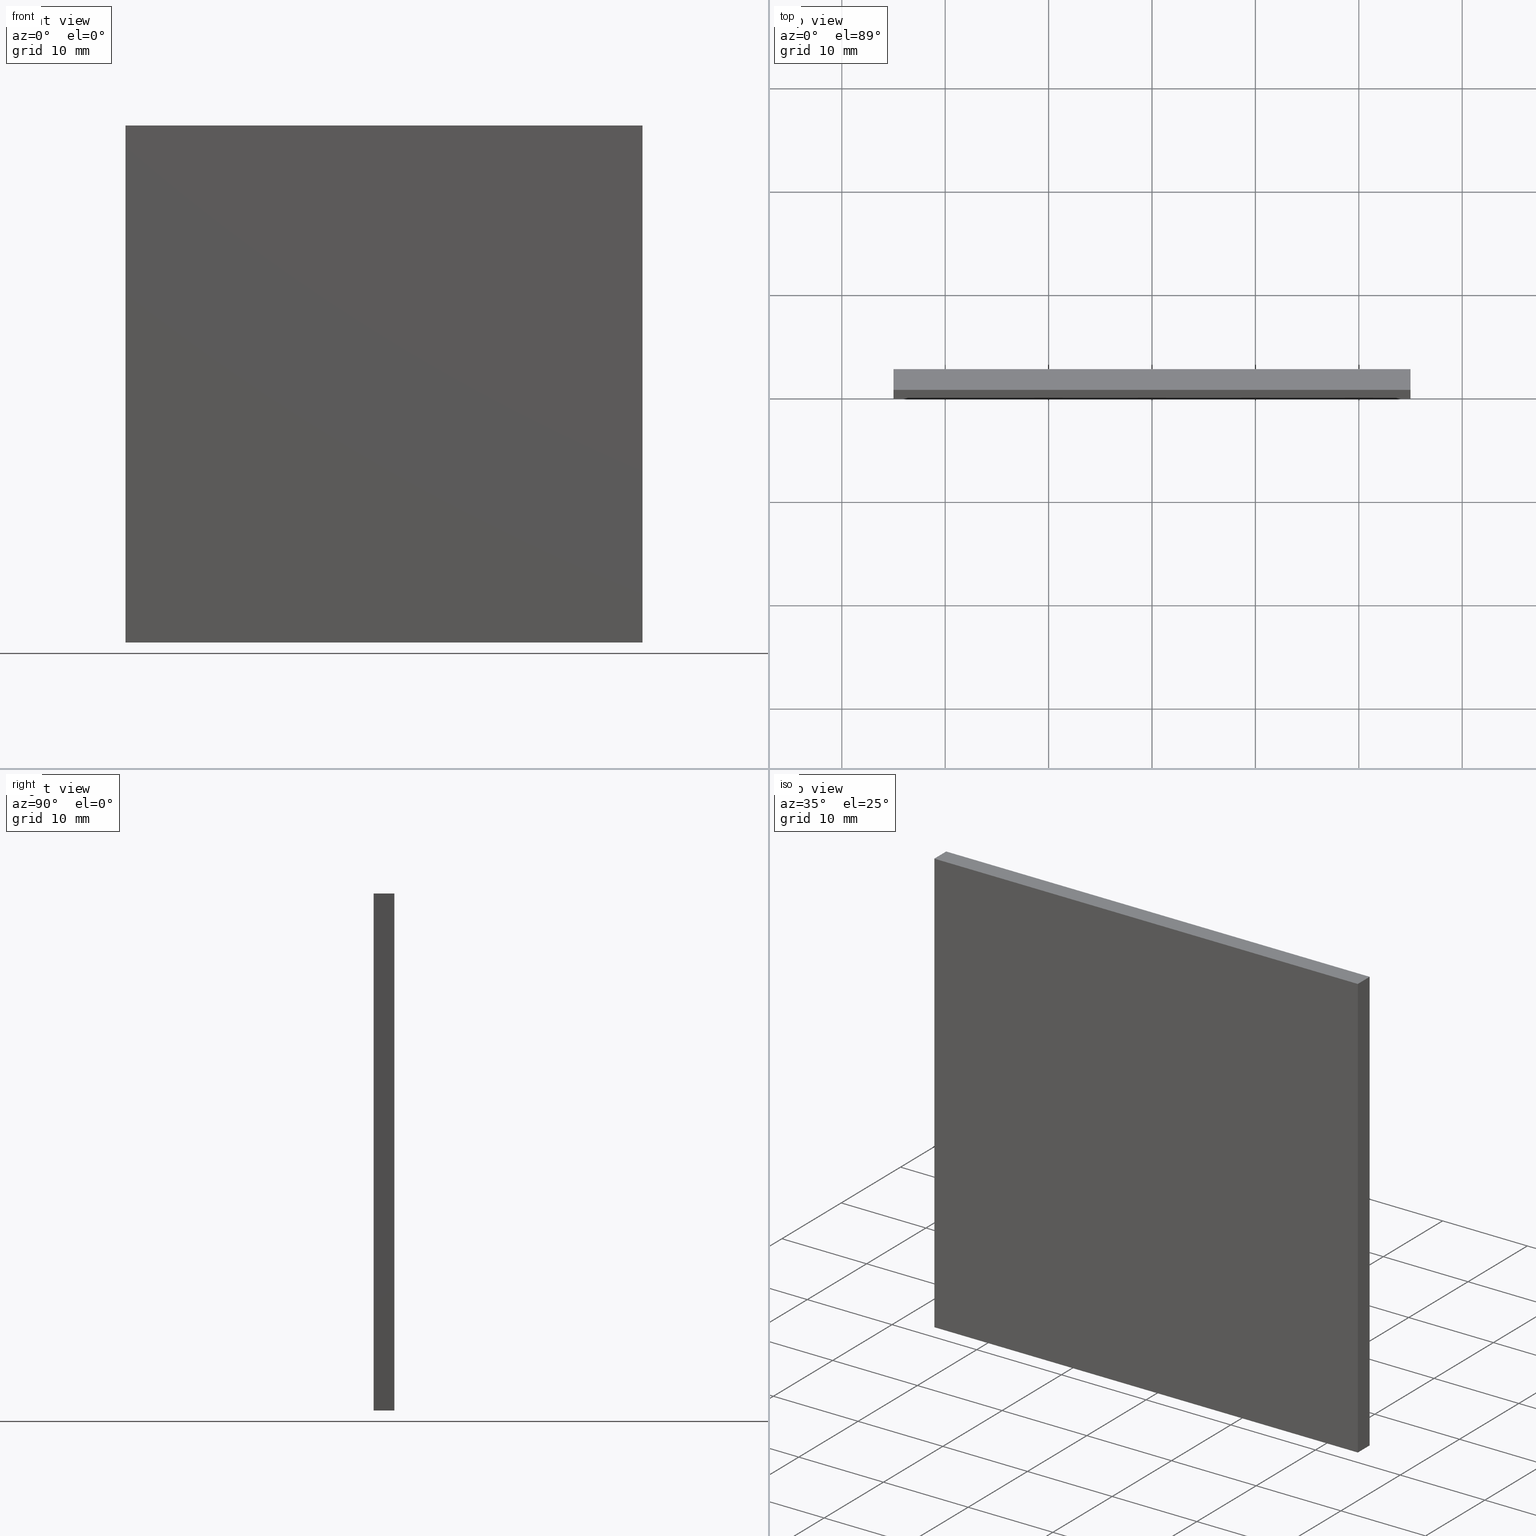
[diagram: canonical four-view strip — front | top / right | iso, engineering-drawing reading convention]
A machine part, canonical four-view strip (front | top / right | iso — engineering-drawing reading convention). The complete STEP part file that produces these views, byte-faithful:
ISO-10303-21;
HEADER;
FILE_DESCRIPTION (( 'STEP AP214' ),
    '1' );
FILE_NAME ('248555.STEP',
    '2019-08-02T06:40:20',
    ( 'user' ),
    ( '΢���й�' ),
    'SwSTEP 2.0',
    'SolidWorks 2016',
    '' );
FILE_SCHEMA (( 'AUTOMOTIVE_DESIGN' ));
ENDSEC;

DATA;
#1 = SURFACE_STYLE_FILL_AREA ( #112 ) ;
#2 = EDGE_CURVE ( 'NONE', #154, #149, #189, .T. ) ;
#3 = EDGE_LOOP ( 'NONE', ( #168, #125, #113, #83 ) ) ;
#4 = ORIENTED_EDGE ( 'NONE', *, *, #2, .T. ) ;
#5 = SURFACE_SIDE_STYLE ('',( #1 ) ) ;
#6 = ADVANCED_FACE ( 'NONE', ( #31 ), #117, .F. ) ;
#7 = CARTESIAN_POINT ( 'NONE',  ( -25.00000000000000000, 2.000000000000000000, 25.00000000000000000 ) ) ;
#8 = DIRECTION ( 'NONE',  ( -1.000000000000000000, 0.0000000000000000000, -0.0000000000000000000 ) ) ;
#9 = ADVANCED_FACE ( 'NONE', ( #105 ), #177, .T. ) ;
#10 = CARTESIAN_POINT ( 'NONE',  ( -25.00000000000000000, 2.000000000000000000, 25.00000000000000000 ) ) ;
#11 = EDGE_CURVE ( 'NONE', #86, #121, #139, .T. ) ;
#12 = DIRECTION ( 'NONE',  ( -1.000000000000000000, 0.0000000000000000000, 0.0000000000000000000 ) ) ;
#13 = CLOSED_SHELL ( 'NONE', ( #144, #195, #89, #58, #6, #9 ) ) ;
#14 = ORIENTED_EDGE ( 'NONE', *, *, #55, .F. ) ;
#15 =( NAMED_UNIT ( * ) SI_UNIT ( $, .STERADIAN. ) SOLID_ANGLE_UNIT ( ) );
#16 = PRODUCT_DEFINITION_CONTEXT ( 'detailed design', #148, 'design' ) ;
#17 = EDGE_CURVE ( 'NONE', #194, #73, #182, .T. ) ;
#18 = ORIENTED_EDGE ( 'NONE', *, *, #97, .T. ) ;
#19 = FACE_OUTER_BOUND ( 'NONE', #124, .T. ) ;
#20 = UNCERTAINTY_MEASURE_WITH_UNIT (LENGTH_MEASURE( 1.000000000000000100E-005 ), #33, 'distance_accuracy_value', 'NONE');
#21 = VECTOR ( 'NONE', #34, 1000.000000000000000 ) ;
#22 = FACE_OUTER_BOUND ( 'NONE', #53, .T. ) ;
#23 = MECHANICAL_DESIGN_GEOMETRIC_PRESENTATION_REPRESENTATION (  '', ( #35 ), #162 ) ;
#24 = ORIENTED_EDGE ( 'NONE', *, *, #17, .F. ) ;
#25 = VECTOR ( 'NONE', #90, 1000.000000000000000 ) ;
#26 = DIRECTION ( 'NONE',  ( 0.0000000000000000000, 0.0000000000000000000, -1.000000000000000000 ) ) ;
#27 = DIRECTION ( 'NONE',  ( 0.0000000000000000000, -0.0000000000000000000, -1.000000000000000000 ) ) ;
#28 = PRESENTATION_LAYER_ASSIGNMENT (  '', '', ( #104 ) ) ;
#29 = CARTESIAN_POINT ( 'NONE',  ( 25.00000000000000000, 0.0000000000000000000, -25.00000000000000000 ) ) ;
#30 = AXIS2_PLACEMENT_3D ( 'NONE', #91, #44, #76 ) ;
#31 = FACE_OUTER_BOUND ( 'NONE', #157, .T. ) ;
#32 = FILL_AREA_STYLE ('',( #107 ) ) ;
#33 =( LENGTH_UNIT ( ) NAMED_UNIT ( * ) SI_UNIT ( .MILLI., .METRE. ) );
#34 = DIRECTION ( 'NONE',  ( 0.0000000000000000000, 0.0000000000000000000, -1.000000000000000000 ) ) ;
#35 = STYLED_ITEM ( 'NONE', ( #85 ), #122 ) ;
#36 = LINE ( 'NONE', #102, #111 ) ;
#37 = VECTOR ( 'NONE', #184, 1000.000000000000000 ) ;
#38 = ORIENTED_EDGE ( 'NONE', *, *, #97, .F. ) ;
#39 = LINE ( 'NONE', #143, #152 ) ;
#40 = MECHANICAL_DESIGN_GEOMETRIC_PRESENTATION_REPRESENTATION (  '', ( #104 ), #51 ) ;
#41 = EDGE_LOOP ( 'NONE', ( #110, #95, #24, #18 ) ) ;
#42 = CARTESIAN_POINT ( 'NONE',  ( 25.00000000000000000, 2.000000000000000000, 25.00000000000000000 ) ) ;
#43 = CARTESIAN_POINT ( 'NONE',  ( -25.00000000000000000, 2.000000000000000000, 25.00000000000000000 ) ) ;
#44 = DIRECTION ( 'NONE',  ( 0.0000000000000000000, -1.000000000000000000, 0.0000000000000000000 ) ) ;
#45 = CARTESIAN_POINT ( 'NONE',  ( 25.00000000000000000, 2.000000000000000000, -25.00000000000000000 ) ) ;
#46 = DIRECTION ( 'NONE',  ( 0.0000000000000000000, 0.0000000000000000000, 1.000000000000000000 ) ) ;
#47 = ORIENTED_EDGE ( 'NONE', *, *, #167, .T. ) ;
#48 =( NAMED_UNIT ( * ) PLANE_ANGLE_UNIT ( ) SI_UNIT ( $, .RADIAN. ) );
#49 = CARTESIAN_POINT ( 'NONE',  ( 0.0000000000000000000, 0.0000000000000000000, 0.0000000000000000000 ) ) ;
#50 = CARTESIAN_POINT ( 'NONE',  ( 25.00000000000000000, 2.000000000000000000, 25.00000000000000000 ) ) ;
#51 =( GEOMETRIC_REPRESENTATION_CONTEXT ( 3 ) GLOBAL_UNCERTAINTY_ASSIGNED_CONTEXT ( ( #146 ) ) GLOBAL_UNIT_ASSIGNED_CONTEXT ( ( #132, #48, #163 ) ) REPRESENTATION_CONTEXT ( 'NONE', 'WORKASPACE' ) );
#52 = EDGE_LOOP ( 'NONE', ( #169, #79, #150, #119 ) ) ;
#53 = EDGE_LOOP ( 'NONE', ( #193, #38, #14, #4 ) ) ;
#54 = AXIS2_PLACEMENT_3D ( 'NONE', #133, #67, #164 ) ;
#55 = EDGE_CURVE ( 'NONE', #154, #194, #101, .T. ) ;
#56 = VERTEX_POINT ( 'NONE', #176 ) ;
#57 = CARTESIAN_POINT ( 'NONE',  ( -25.00000000000000000, 2.000000000000000000, -25.00000000000000000 ) ) ;
#58 = ADVANCED_FACE ( 'NONE', ( #19 ), #145, .F. ) ;
#59 = CARTESIAN_POINT ( 'NONE',  ( -25.00000000000000000, 2.000000000000000000, 25.00000000000000000 ) ) ;
#60 = DIRECTION ( 'NONE',  ( -1.000000000000000000, -0.0000000000000000000, -0.0000000000000000000 ) ) ;
#61 = UNCERTAINTY_MEASURE_WITH_UNIT (LENGTH_MEASURE( 1.000000000000000100E-005 ), #92, 'distance_accuracy_value', 'NONE');
#62 = EDGE_CURVE ( 'NONE', #73, #74, #199, .T. ) ;
#63 = CARTESIAN_POINT ( 'NONE',  ( -25.00000000000000000, 2.000000000000000000, 25.00000000000000000 ) ) ;
#64 = ORIENTED_EDGE ( 'NONE', *, *, #55, .T. ) ;
#65 = VECTOR ( 'NONE', #116, 1000.000000000000000 ) ;
#66 = SURFACE_STYLE_USAGE ( .BOTH. , #151 ) ;
#67 = DIRECTION ( 'NONE',  ( 0.0000000000000000000, 0.0000000000000000000, 1.000000000000000000 ) ) ;
#68 = LINE ( 'NONE', #165, #21 ) ;
#69 = DIRECTION ( 'NONE',  ( -0.0000000000000000000, -1.000000000000000000, -0.0000000000000000000 ) ) ;
#70 = PRESENTATION_STYLE_ASSIGNMENT (( #66 ) ) ;
#71 = CARTESIAN_POINT ( 'NONE',  ( 25.00000000000000000, 2.000000000000000000, -25.00000000000000000 ) ) ;
#72 = EDGE_CURVE ( 'NONE', #56, #149, #36, .T. ) ;
#73 = VERTEX_POINT ( 'NONE', #59 ) ;
#74 = VERTEX_POINT ( 'NONE', #42 ) ;
#75 = DIRECTION ( 'NONE',  ( 1.000000000000000000, 0.0000000000000000000, 0.0000000000000000000 ) ) ;
#76 = DIRECTION ( 'NONE',  ( 0.0000000000000000000, -0.0000000000000000000, -1.000000000000000000 ) ) ;
#77 = FACE_OUTER_BOUND ( 'NONE', #41, .T. ) ;
#78 = PLANE ( 'NONE',  #172 ) ;
#79 = ORIENTED_EDGE ( 'NONE', *, *, #167, .F. ) ;
#80 = ORIENTED_EDGE ( 'NONE', *, *, #62, .T. ) ;
#81 = COLOUR_RGB ( '',1.000000000000000000, 1.000000000000000000, 1.000000000000000000 ) ;
#82 = AXIS2_PLACEMENT_3D ( 'NONE', #49, #46, #181 ) ;
#83 = ORIENTED_EDGE ( 'NONE', *, *, #159, .T. ) ;
#84 = EDGE_CURVE ( 'NONE', #149, #86, #39, .T. ) ;
#85 = PRESENTATION_STYLE_ASSIGNMENT (( #100 ) ) ;
#86 = VERTEX_POINT ( 'NONE', #88 ) ;
#87 = DIRECTION ( 'NONE',  ( 1.000000000000000000, -0.0000000000000000000, 0.0000000000000000000 ) ) ;
#88 = CARTESIAN_POINT ( 'NONE',  ( -25.00000000000000000, 0.0000000000000000000, -25.00000000000000000 ) ) ;
#89 = ADVANCED_FACE ( 'NONE', ( #77 ), #114, .F. ) ;
#90 = DIRECTION ( 'NONE',  ( -0.0000000000000000000, -0.0000000000000000000, 1.000000000000000000 ) ) ;
#91 = CARTESIAN_POINT ( 'NONE',  ( 0.0000000000000000000, 2.000000000000000000, 0.0000000000000000000 ) ) ;
#92 =( LENGTH_UNIT ( ) NAMED_UNIT ( * ) SI_UNIT ( .MILLI., .METRE. ) );
#93 = PRODUCT_DEFINITION ( 'δ֪', '', #99, #16 ) ;
#94 = ORIENTED_EDGE ( 'NONE', *, *, #62, .F. ) ;
#95 = ORIENTED_EDGE ( 'NONE', *, *, #147, .F. ) ;
#96 = PRODUCT_CONTEXT ( 'NONE', #183, 'mechanical' ) ;
#97 = EDGE_CURVE ( 'NONE', #194, #86, #118, .T. ) ;
#98 = VECTOR ( 'NONE', #69, 1000.000000000000000 ) ;
#99 = PRODUCT_DEFINITION_FORMATION_WITH_SPECIFIED_SOURCE ( '�κ�', '', #123, .NOT_KNOWN. ) ;
#100 = SURFACE_STYLE_USAGE ( .BOTH. , #5 ) ;
#101 = LINE ( 'NONE', #160, #175 ) ;
#102 = CARTESIAN_POINT ( 'NONE',  ( 25.00000000000000000, 0.0000000000000000000, 25.00000000000000000 ) ) ;
#103 = PRODUCT_DEFINITION_SHAPE ( 'NONE', 'NONE',  #93 ) ;
#104 = STYLED_ITEM ( 'NONE', ( #70 ), #185 ) ;
#105 = FACE_OUTER_BOUND ( 'NONE', #52, .T. ) ;
#106 =( NAMED_UNIT ( * ) PLANE_ANGLE_UNIT ( ) SI_UNIT ( $, .RADIAN. ) );
#107 = FILL_AREA_STYLE_COLOUR ( '', #137 ) ;
#108 = PRODUCT_RELATED_PRODUCT_CATEGORY ( 'part', '', ( #123 ) ) ;
#109 = LINE ( 'NONE', #202, #37 ) ;
#110 = ORIENTED_EDGE ( 'NONE', *, *, #11, .T. ) ;
#111 = VECTOR ( 'NONE', #26, 1000.000000000000000 ) ;
#112 = FILL_AREA_STYLE ('',( #196 ) ) ;
#113 = ORIENTED_EDGE ( 'NONE', *, *, #155, .F. ) ;
#114 = PLANE ( 'NONE',  #166 ) ;
#115 = DIRECTION ( 'NONE',  ( 0.0000000000000000000, 0.0000000000000000000, -1.000000000000000000 ) ) ;
#116 = DIRECTION ( 'NONE',  ( -0.0000000000000000000, -0.0000000000000000000, 1.000000000000000000 ) ) ;
#117 = PLANE ( 'NONE',  #30 ) ;
#118 = LINE ( 'NONE', #57, #156 ) ;
#119 = ORIENTED_EDGE ( 'NONE', *, *, #84, .F. ) ;
#120 = DIRECTION ( 'NONE',  ( -0.0000000000000000000, -1.000000000000000000, -0.0000000000000000000 ) ) ;
#121 = VERTEX_POINT ( 'NONE', #126 ) ;
#122 = MANIFOLD_SOLID_BREP ( '͹̨-����1', #13 ) ;
#123 = PRODUCT ( '248555', '248555', '', ( #96 ) ) ;
#124 = EDGE_LOOP ( 'NONE', ( #47, #153, #94, #200 ) ) ;
#125 = ORIENTED_EDGE ( 'NONE', *, *, #2, .F. ) ;
#126 = CARTESIAN_POINT ( 'NONE',  ( -25.00000000000000000, 0.0000000000000000000, 25.00000000000000000 ) ) ;
#127 = DIRECTION ( 'NONE',  ( -1.000000000000000000, -0.0000000000000000000, -0.0000000000000000000 ) ) ;
#128 = DIRECTION ( 'NONE',  ( 0.0000000000000000000, -1.000000000000000000, 0.0000000000000000000 ) ) ;
#129 = DIRECTION ( 'NONE',  ( -0.0000000000000000000, -1.000000000000000000, -0.0000000000000000000 ) ) ;
#130 =( GEOMETRIC_REPRESENTATION_CONTEXT ( 3 ) GLOBAL_UNCERTAINTY_ASSIGNED_CONTEXT ( ( #20 ) ) GLOBAL_UNIT_ASSIGNED_CONTEXT ( ( #33, #106, #15 ) ) REPRESENTATION_CONTEXT ( 'NONE', 'WORKASPACE' ) );
#131 =( NAMED_UNIT ( * ) PLANE_ANGLE_UNIT ( ) SI_UNIT ( $, .RADIAN. ) );
#132 =( LENGTH_UNIT ( ) NAMED_UNIT ( * ) SI_UNIT ( .MILLI., .METRE. ) );
#133 = CARTESIAN_POINT ( 'NONE',  ( -25.00000000000000000, 2.000000000000000000, -25.00000000000000000 ) ) ;
#134 = CARTESIAN_POINT ( 'NONE',  ( -25.00000000000000000, 2.000000000000000000, -25.00000000000000000 ) ) ;
#135 = LINE ( 'NONE', #63, #98 ) ;
#136 = PRESENTATION_LAYER_ASSIGNMENT (  '', '', ( #35 ) ) ;
#137 = COLOUR_RGB ( '',1.000000000000000000, 1.000000000000000000, 1.000000000000000000 ) ;
#138 = ORIENTED_EDGE ( 'NONE', *, *, #155, .T. ) ;
#139 = LINE ( 'NONE', #197, #25 ) ;
#140 = VECTOR ( 'NONE', #120, 1000.000000000000000 ) ;
#141 = CARTESIAN_POINT ( 'NONE',  ( 25.00000000000000000, 2.000000000000000000, 25.00000000000000000 ) ) ;
#142 = VECTOR ( 'NONE', #129, 1000.000000000000000 ) ;
#143 = CARTESIAN_POINT ( 'NONE',  ( -25.00000000000000000, 0.0000000000000000000, -25.00000000000000000 ) ) ;
#144 = ADVANCED_FACE ( 'NONE', ( #171 ), #78, .F. ) ;
#145 = PLANE ( 'NONE',  #190 ) ;
#146 = UNCERTAINTY_MEASURE_WITH_UNIT (LENGTH_MEASURE( 1.000000000000000100E-005 ), #132, 'distance_accuracy_value', 'NONE');
#147 = EDGE_CURVE ( 'NONE', #73, #121, #135, .T. ) ;
#148 = APPLICATION_CONTEXT ( 'automotive_design' ) ;
#149 = VERTEX_POINT ( 'NONE', #29 ) ;
#150 = ORIENTED_EDGE ( 'NONE', *, *, #11, .F. ) ;
#151 = SURFACE_SIDE_STYLE ('',( #186 ) ) ;
#152 = VECTOR ( 'NONE', #127, 1000.000000000000000 ) ;
#153 = ORIENTED_EDGE ( 'NONE', *, *, #159, .F. ) ;
#154 = VERTEX_POINT ( 'NONE', #45 ) ;
#155 = EDGE_CURVE ( 'NONE', #74, #154, #68, .T. ) ;
#156 = VECTOR ( 'NONE', #158, 1000.000000000000000 ) ;
#157 = EDGE_LOOP ( 'NONE', ( #138, #64, #188, #80 ) ) ;
#158 = DIRECTION ( 'NONE',  ( -0.0000000000000000000, -1.000000000000000000, -0.0000000000000000000 ) ) ;
#159 = EDGE_CURVE ( 'NONE', #74, #56, #187, .T. ) ;
#160 = CARTESIAN_POINT ( 'NONE',  ( -25.00000000000000000, 2.000000000000000000, -25.00000000000000000 ) ) ;
#161 =( NAMED_UNIT ( * ) SI_UNIT ( $, .STERADIAN. ) SOLID_ANGLE_UNIT ( ) );
#162 =( GEOMETRIC_REPRESENTATION_CONTEXT ( 3 ) GLOBAL_UNCERTAINTY_ASSIGNED_CONTEXT ( ( #61 ) ) GLOBAL_UNIT_ASSIGNED_CONTEXT ( ( #92, #131, #161 ) ) REPRESENTATION_CONTEXT ( 'NONE', 'WORKASPACE' ) );
#163 =( NAMED_UNIT ( * ) SI_UNIT ( $, .STERADIAN. ) SOLID_ANGLE_UNIT ( ) );
#164 = DIRECTION ( 'NONE',  ( 1.000000000000000000, 0.0000000000000000000, -0.0000000000000000000 ) ) ;
#165 = CARTESIAN_POINT ( 'NONE',  ( 25.00000000000000000, 2.000000000000000000, 25.00000000000000000 ) ) ;
#166 = AXIS2_PLACEMENT_3D ( 'NONE', #7, #87, #173 ) ;
#167 = EDGE_CURVE ( 'NONE', #121, #56, #109, .T. ) ;
#168 = ORIENTED_EDGE ( 'NONE', *, *, #72, .T. ) ;
#169 = ORIENTED_EDGE ( 'NONE', *, *, #72, .F. ) ;
#170 = AXIS2_PLACEMENT_3D ( 'NONE', #198, #128, #27 ) ;
#171 = FACE_OUTER_BOUND ( 'NONE', #3, .T. ) ;
#172 = AXIS2_PLACEMENT_3D ( 'NONE', #141, #12, #179 ) ;
#173 = DIRECTION ( 'NONE',  ( 0.0000000000000000000, 0.0000000000000000000, -1.000000000000000000 ) ) ;
#174 = CARTESIAN_POINT ( 'NONE',  ( -25.00000000000000000, 2.000000000000000000, 25.00000000000000000 ) ) ;
#175 = VECTOR ( 'NONE', #60, 1000.000000000000000 ) ;
#176 = CARTESIAN_POINT ( 'NONE',  ( 25.00000000000000000, 0.0000000000000000000, 25.00000000000000000 ) ) ;
#177 = PLANE ( 'NONE',  #170 ) ;
#178 = PLANE ( 'NONE',  #54 ) ;
#179 = DIRECTION ( 'NONE',  ( 0.0000000000000000000, 0.0000000000000000000, 1.000000000000000000 ) ) ;
#180 = APPLICATION_PROTOCOL_DEFINITION ( 'draft international standard', 'automotive_design', 1998, #148 ) ;
#181 = DIRECTION ( 'NONE',  ( 1.000000000000000000, 0.0000000000000000000, 0.0000000000000000000 ) ) ;
#182 = LINE ( 'NONE', #10, #65 ) ;
#183 = APPLICATION_CONTEXT ( 'automotive_design' ) ;
#184 = DIRECTION ( 'NONE',  ( 1.000000000000000000, 0.0000000000000000000, 0.0000000000000000000 ) ) ;
#185 = ADVANCED_BREP_SHAPE_REPRESENTATION ( '248555', ( #122, #82 ), #130 ) ;
#186 = SURFACE_STYLE_FILL_AREA ( #32 ) ;
#187 = LINE ( 'NONE', #50, #140 ) ;
#188 = ORIENTED_EDGE ( 'NONE', *, *, #17, .T. ) ;
#189 = LINE ( 'NONE', #71, #142 ) ;
#190 = AXIS2_PLACEMENT_3D ( 'NONE', #43, #115, #8 ) ;
#191 = SHAPE_DEFINITION_REPRESENTATION ( #103, #185 ) ;
#192 = VECTOR ( 'NONE', #75, 1000.000000000000000 ) ;
#193 = ORIENTED_EDGE ( 'NONE', *, *, #84, .T. ) ;
#194 = VERTEX_POINT ( 'NONE', #134 ) ;
#195 = ADVANCED_FACE ( 'NONE', ( #22 ), #178, .F. ) ;
#196 = FILL_AREA_STYLE_COLOUR ( '', #81 ) ;
#197 = CARTESIAN_POINT ( 'NONE',  ( -25.00000000000000000, 0.0000000000000000000, 25.00000000000000000 ) ) ;
#198 = CARTESIAN_POINT ( 'NONE',  ( 0.0000000000000000000, 0.0000000000000000000, 0.0000000000000000000 ) ) ;
#199 = LINE ( 'NONE', #174, #192 ) ;
#200 = ORIENTED_EDGE ( 'NONE', *, *, #147, .T. ) ;
#201 = APPLICATION_PROTOCOL_DEFINITION ( 'draft international standard', 'automotive_design', 1998, #183 ) ;
#202 = CARTESIAN_POINT ( 'NONE',  ( -25.00000000000000000, 0.0000000000000000000, 25.00000000000000000 ) ) ;
ENDSEC;
END-ISO-10303-21;
